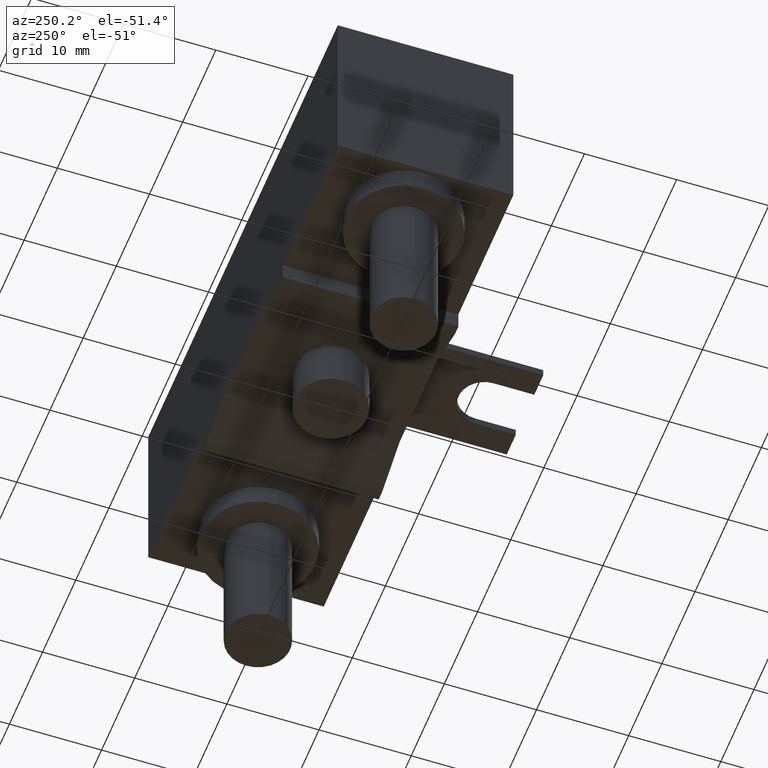
[diagram: clean part render]
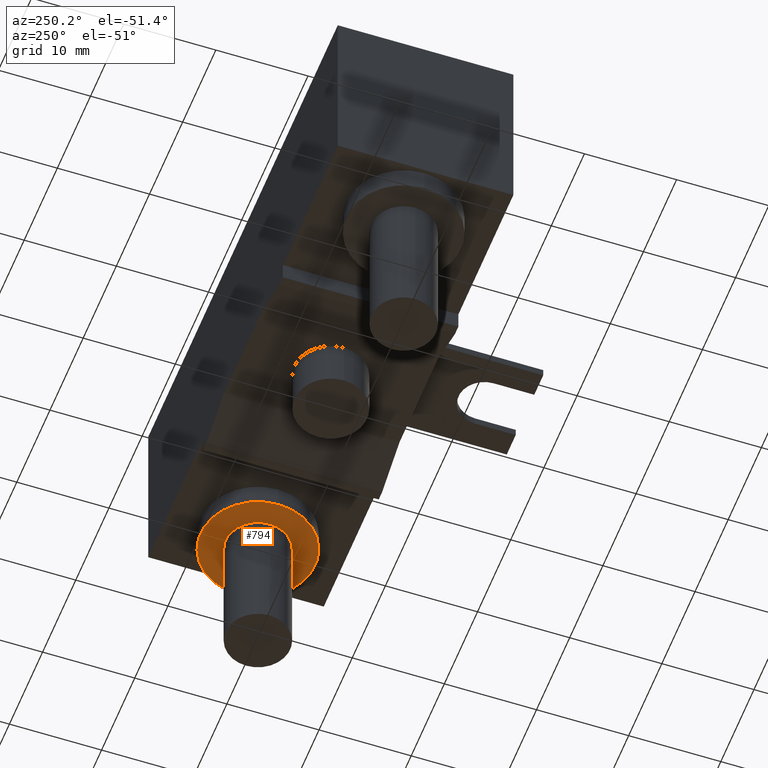
[diagram: same view with one face highlighted and labeled with its STEP entity id]
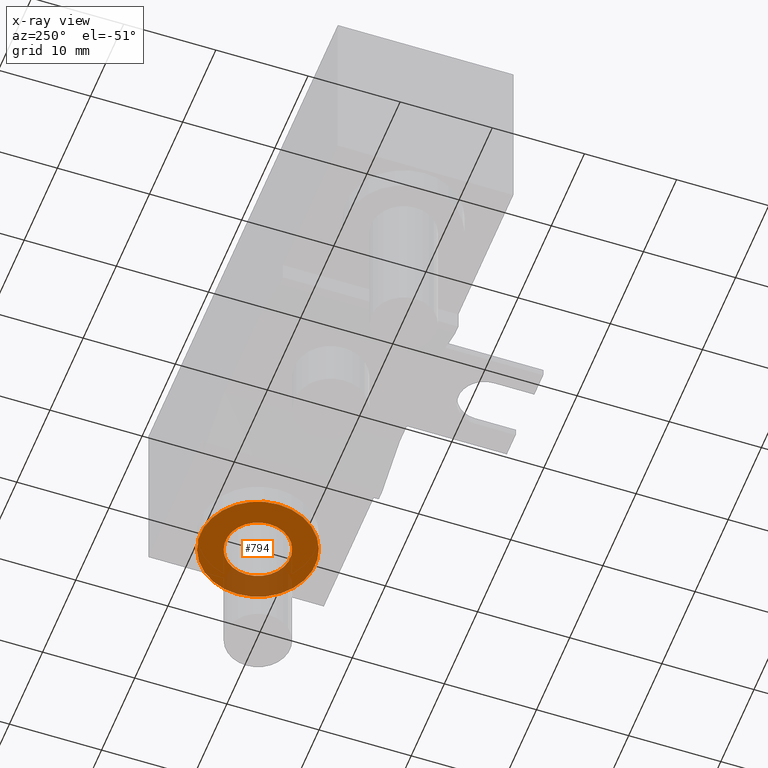
[diagram: x-ray of the same camera — body ghosted, the highlighted face saturated]
A machine part, auxiliary view. The second image highlights one B-rep face of the part: STEP entity #794.
The next image is the same camera in x-ray: the body ghosted, the highlighted face saturated — about 23% of this face is hidden behind the body in this view.
In plain terms, the highlighted planar face has unit normal (0, 0, -1).
Its self-contained STEP definition (entity closure, byte-faithful):
#199=CARTESIAN_POINT('',(2.197E1,9.525E0,-1.23E1));
#200=DIRECTION('',(0.E0,0.E0,-1.E0));
#201=DIRECTION('',(1.E0,0.E0,0.E0));
#202=AXIS2_PLACEMENT_3D('',#199,#200,#201);
#204=CARTESIAN_POINT('',(2.197E1,9.525E0,-1.23E1));
#205=DIRECTION('',(0.E0,0.E0,-1.E0));
#206=DIRECTION('',(-1.E0,0.E0,0.E0));
#207=AXIS2_PLACEMENT_3D('',#204,#205,#206);
#219=CARTESIAN_POINT('',(2.197E1,9.525E0,-1.23E1));
#220=DIRECTION('',(0.E0,0.E0,-1.E0));
#221=DIRECTION('',(1.E0,0.E0,0.E0));
#222=AXIS2_PLACEMENT_3D('',#219,#220,#221);
#224=CARTESIAN_POINT('',(2.197E1,9.525E0,-1.23E1));
#225=DIRECTION('',(0.E0,0.E0,-1.E0));
#226=DIRECTION('',(-1.E0,0.E0,0.E0));
#227=AXIS2_PLACEMENT_3D('',#224,#225,#226);
#431=CARTESIAN_POINT('',(2.8195E1,9.525E0,-1.23E1));
#432=CARTESIAN_POINT('',(1.5745E1,9.525E0,-1.23E1));
#433=VERTEX_POINT('',#431);
#434=VERTEX_POINT('',#432);
#455=CARTESIAN_POINT('',(2.547E1,9.525E0,-1.23E1));
#456=CARTESIAN_POINT('',(1.847E1,9.525E0,-1.23E1));
#457=VERTEX_POINT('',#455);
#458=VERTEX_POINT('',#456);
#779=CARTESIAN_POINT('',(0.E0,0.E0,-1.23E1));
#780=DIRECTION('',(0.E0,0.E0,-1.E0));
#781=DIRECTION('',(1.E0,0.E0,0.E0));
#782=AXIS2_PLACEMENT_3D('',#779,#780,#781);
#783=PLANE('',#782);
#784=ORIENTED_EDGE('',*,*,#759,.F.);
#785=ORIENTED_EDGE('',*,*,#773,.F.);
#786=EDGE_LOOP('',(#784,#785));
#787=FACE_OUTER_BOUND('',#786,.F.);
#789=ORIENTED_EDGE('',*,*,#788,.T.);
#791=ORIENTED_EDGE('',*,*,#790,.T.);
#792=EDGE_LOOP('',(#789,#791));
#793=FACE_BOUND('',#792,.F.);
#203=CIRCLE('',#202,6.225E0);
#208=CIRCLE('',#207,6.225E0);
#223=CIRCLE('',#222,3.5E0);
#228=CIRCLE('',#227,3.5E0);
#759=EDGE_CURVE('',#433,#434,#203,.T.);
#773=EDGE_CURVE('',#434,#433,#208,.T.);
#788=EDGE_CURVE('',#457,#458,#223,.T.);
#790=EDGE_CURVE('',#458,#457,#228,.T.);
#794=ADVANCED_FACE('',(#787,#793),#783,.T.);